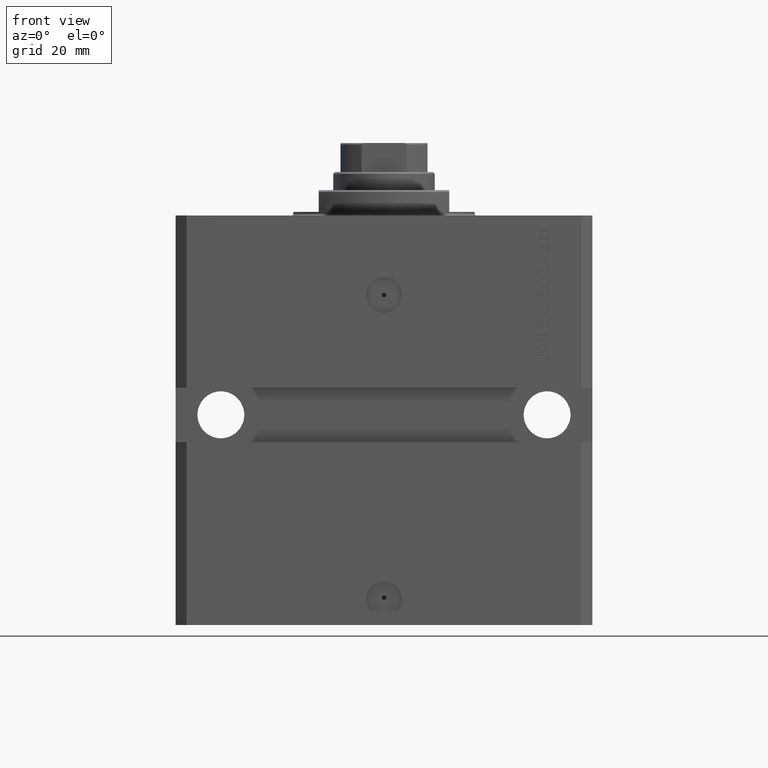
[diagram: clean part render]
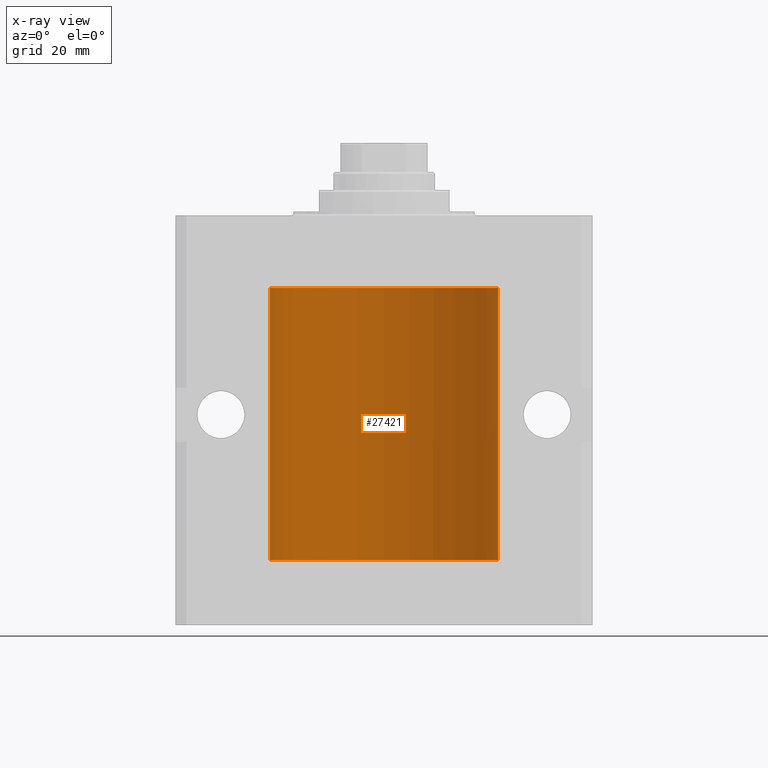
[diagram: x-ray — body ghosted, one internal face saturated and labeled with its STEP entity id]
A machine part, front view, then the same camera in x-ray: the body is ghosted and one INTERNAL B-rep face — a face not visible from any outside direction — is saturated and labeled: STEP entity #27421.
In plain terms, the highlighted cylindrical surface (partial cylindrical patch) has radius 31.5 mm, axis along (0, 0, 1).
Its self-contained STEP definition (entity closure, byte-faithful):
#44 = ORIENTED_EDGE ( 'NONE', *, *, #19110, .T. ) ;
#123 = CARTESIAN_POINT ( 'NONE',  ( 31.49379899281745665, 0.6250000000082825968, -91.99999999999904787 ) ) ;
#1339 = LINE ( 'NONE', #16516, #48705 ) ;
#1355 = CARTESIAN_POINT ( 'NONE',  ( 31.50000000000000000, 0.000000000000000000, -95.09999999999999432 ) ) ;
#1527 = CARTESIAN_POINT ( 'NONE',  ( 31.50000000000006395, 3.442404531757459093E-13, -28.37499999999677058 ) ) ;
#1794 = AXIS2_PLACEMENT_3D ( 'NONE', #44757, #33081, #45013 ) ;
#1925 = CARTESIAN_POINT ( 'NONE',  ( 31.50000000000000000, 0.08261130139622085977, -29.62500000000000000 ) ) ;
#1936 = AXIS2_PLACEMENT_3D ( 'NONE', #20533, #36210, #36460 ) ;
#2411 = DIRECTION ( 'NONE',  ( -0.000000000000000000, -0.000000000000000000, 1.000000000000000000 ) ) ;
#3114 = B_SPLINE_CURVE_WITH_KNOTS ( 'NONE', 3,
 ( #28298, #1925, #5175, #8911, #24063, #13393, #17107, #35773 ),
 .UNSPECIFIED., .F., .F.,
 ( 4, 2, 2, 4 ),
 ( 3.238208634416540241E-18, 0.0002443157997801682479, 0.0004886315995603332431, 0.0009772631991206560780 ),
 .UNSPECIFIED. ) ;
#3509 = CARTESIAN_POINT ( 'NONE',  ( 31.50000000000006395, 3.442404755096224483E-13, -91.37499999999675993 ) ) ;
#3699 = ORIENTED_EDGE ( 'NONE', *, *, #36966, .T. ) ;
#3852 = CARTESIAN_POINT ( 'NONE',  ( 31.49526225382467359, 0.5586305680866429091, -91.67476160622150871 ) ) ;
#3937 = CARTESIAN_POINT ( 'NONE',  ( -31.49851563474691929, 0.3150284575672400722, -91.45401791159622462 ) ) ;
#3982 = ORIENTED_EDGE ( 'NONE', *, *, #41477, .T. ) ;
#4284 = CARTESIAN_POINT ( 'NONE',  ( 31.50000000000000000, 0.000000000000000000, -20.00000000000000355 ) ) ;
#4780 = VERTEX_POINT ( 'NONE', #10645 ) ;
#5175 = CARTESIAN_POINT ( 'NONE',  ( 31.49966575203785268, 0.1636755595825553355, -29.60873030821187157 ) ) ;
#5542 = ORIENTED_EDGE ( 'NONE', *, *, #35063, .T. ) ;
#5621 = EDGE_CURVE ( 'NONE', #8554, #30212, #5635, .T. ) ;
#5635 = B_SPLINE_CURVE_WITH_KNOTS ( 'NONE', 3,
 ( #11644, #26794, #41976, #38242, #34505, #31018, #42209, #30784, #38742, #45961, #19583, #34764 ),
 .UNSPECIFIED., .F., .F.,
 ( 4, 2, 2, 2, 2, 4 ),
 ( 5.360009401240409372E-19, 0.0002442604562134703173, 0.0004885209124269400925, 0.0009770418248538795345, 0.001465562737280818977, 0.001954083649707758635 ),
 .UNSPECIFIED. ) ;
#6353 = ORIENTED_EDGE ( 'NONE', *, *, #45075, .F. ) ;
#6521 = CARTESIAN_POINT ( 'NONE',  ( 31.50000000000000000, 0.000000000000000000, -95.09999999999999432 ) ) ;
#6710 = EDGE_CURVE ( 'NONE', #45995, #42361, #17255, .T. ) ;
#6799 = CARTESIAN_POINT ( 'NONE',  ( 31.50000000000000000, 0.000000000000000000, -95.09999999999999432 ) ) ;
#8268 = CARTESIAN_POINT ( 'NONE',  ( 31.50000000000006395, 3.442404531757459093E-13, -28.37499999999677058 ) ) ;
#8309 = ORIENTED_EDGE ( 'NONE', *, *, #24601, .F. ) ;
#8498 = CARTESIAN_POINT ( 'NONE',  ( 31.49853627283156499, 0.3253078817183396310, -91.44140989403643971 ) ) ;
#8554 = VERTEX_POINT ( 'NONE', #24995 ) ;
#8685 = EDGE_CURVE ( 'NONE', #21688, #15198, #45101, .T. ) ;
#8717 = CARTESIAN_POINT ( 'NONE',  ( 31.49966575203785268, 0.1636755595825563903, -92.60873030821188934 ) ) ;
#8911 = CARTESIAN_POINT ( 'NONE',  ( 31.49851501686590893, 0.3150934959385778278, -29.54594721883858099 ) ) ;
#9154 = VERTEX_POINT ( 'NONE', #44964 ) ;
#9200 = ORIENTED_EDGE ( 'NONE', *, *, #12065, .F. ) ;
#10240 = B_SPLINE_CURVE_WITH_KNOTS ( 'NONE', 3,
 ( #42055, #16433, #8717, #45796, #34596, #34840, #34346, #46534 ),
 .UNSPECIFIED., .F., .F.,
 ( 4, 2, 2, 4 ),
 ( 2.422664849601941982E-18, 0.0002443157997801665674, 0.0004886315995603306411, 0.0009772631991206588969 ),
 .UNSPECIFIED. ) ;
#10645 = CARTESIAN_POINT ( 'NONE',  ( -31.50000000000006395, 3.480981129463732167E-13, -92.62500000000324007 ) ) ;
#10928 = CARTESIAN_POINT ( 'NONE',  ( -31.49770767031178664, 0.3843648832734369858, -91.50046081259654329 ) ) ;
#11644 = CARTESIAN_POINT ( 'NONE',  ( -31.50000000000000000, 6.759071642563815395E-15, -28.37500000000000355 ) ) ;
#12065 = EDGE_CURVE ( 'NONE', #28734, #4780, #33224, .T. ) ;
#13393 = CARTESIAN_POINT ( 'NONE',  ( 31.49527883250256721, 0.5574151849338075948, -29.32638608454754703 ) ) ;
#15198 = VERTEX_POINT ( 'NONE', #3509 ) ;
#15279 = CARTESIAN_POINT ( 'NONE',  ( 31.50000000000006395, 3.442404755096224483E-13, -91.37499999999675993 ) ) ;
#15652 = DIRECTION ( 'NONE',  ( 1.000000000000000000, 0.000000000000000000, 0.000000000000000000 ) ) ;
#15786 = CARTESIAN_POINT ( 'NONE',  ( 31.49379899281745665, 0.6250000000082756024, -28.99999999999905853 ) ) ;
#15872 = VERTEX_POINT ( 'NONE', #6521 ) ;
#16247 = VECTOR ( 'NONE', #23672, 1000.000000000000000 ) ;
#16433 = CARTESIAN_POINT ( 'NONE',  ( 31.50000000000000000, 0.08261130139621999935, -92.62499999999998579 ) ) ;
#16516 = CARTESIAN_POINT ( 'NONE',  ( -31.50000000000000000, 3.857637417314161900E-15, -95.09999999999999432 ) ) ;
#17107 = CARTESIAN_POINT ( 'NONE',  ( 31.49379899281760942, 0.6250000000003356204, -29.16310352862698707 ) ) ;
#17255 = LINE ( 'NONE', #1355, #40214 ) ;
#17298 = CYLINDRICAL_SURFACE ( 'NONE', #1936, 31.50000000000000000 ) ;
#19105 = CARTESIAN_POINT ( 'NONE',  ( -31.50000000000000000, 0.1631661150515251457, -92.62499999999987210 ) ) ;
#19110 = EDGE_CURVE ( 'NONE', #42361, #25488, #48609, .T. ) ;
#19251 = ORIENTED_EDGE ( 'NONE', *, *, #44982, .T. ) ;
#19583 = CARTESIAN_POINT ( 'NONE',  ( -31.50000000000000000, 0.1631661150515231473, -29.62499999999986144 ) ) ;
#19764 = EDGE_CURVE ( 'NONE', #9154, #45995, #28407, .T. ) ;
#20007 = CARTESIAN_POINT ( 'NONE',  ( -31.50000000000000000, -1.782211808847502510E-16, -91.37500000000001421 ) ) ;
#20533 = CARTESIAN_POINT ( 'NONE',  ( 0.000000000000000000, 0.000000000000000000, -95.09999999999999432 ) ) ;
#20655 = CARTESIAN_POINT ( 'NONE',  ( 31.49379899281762363, 0.6249999999996236344, -91.83697036533064306 ) ) ;
#21108 = ORIENTED_EDGE ( 'NONE', *, *, #6710, .T. ) ;
#21688 = VERTEX_POINT ( 'NONE', #123 ) ;
#21801 = VERTEX_POINT ( 'NONE', #20007 ) ;
#22339 = CARTESIAN_POINT ( 'NONE',  ( -31.49966591610108679, 0.1636376958180626451, -91.39126189995837990 ) ) ;
#22988 = CARTESIAN_POINT ( 'NONE',  ( 31.49853627283156499, 0.3253078817183361338, -28.44140989403645747 ) ) ;
#23672 = DIRECTION ( 'NONE',  ( -0.000000000000000000, -0.000000000000000000, 1.000000000000000000 ) ) ;
#23684 = EDGE_CURVE ( 'NONE', #15872, #28734, #48673, .T. ) ;
#24063 = CARTESIAN_POINT ( 'NONE',  ( 31.49770674525947101, 0.3844410175904603433, -29.49948347834465068 ) ) ;
#24249 = FACE_OUTER_BOUND ( 'NONE', #34969, .T. ) ;
#24295 = CARTESIAN_POINT ( 'NONE',  ( 31.50000000000000000, 0.000000000000000000, -95.09999999999999432 ) ) ;
#24601 = EDGE_CURVE ( 'NONE', #21801, #30212, #1339, .T. ) ;
#24632 = CARTESIAN_POINT ( 'NONE',  ( 31.50000000000000000, 0.1631291455194384676, -28.37500000000015277 ) ) ;
#24995 = CARTESIAN_POINT ( 'NONE',  ( -31.50000000000000000, 6.759071642563815395E-15, -28.37500000000000355 ) ) ;
#25488 = VERTEX_POINT ( 'NONE', #34548 ) ;
#26462 = CARTESIAN_POINT ( 'NONE',  ( 31.50000000000000000, 0.1631291455194407158, -91.37500000000017053 ) ) ;
#26794 = CARTESIAN_POINT ( 'NONE',  ( -31.49999999999999289, 0.08259258789479796692, -28.37500000000000711 ) ) ;
#27147 = AXIS2_PLACEMENT_3D ( 'NONE', #49230, #41773, #15652 ) ;
#27421 = ADVANCED_FACE ( 'NONE', ( #24249 ), #17298, .F. ) ;
#28298 = CARTESIAN_POINT ( 'NONE',  ( 31.50000000000000000, 1.559778271476245299E-15, -29.62500000000000000 ) ) ;
#28376 = CARTESIAN_POINT ( 'NONE',  ( 31.49379899281762363, 0.6249999999996150857, -28.83697036533062885 ) ) ;
#28407 = B_SPLINE_CURVE_WITH_KNOTS ( 'NONE', 3,
 ( #15786, #28376, #43552, #22988, #24632, #1527 ),
 .UNSPECIFIED., .F., .F.,
 ( 4, 2, 4 ),
 ( 0.0009772631991206560780, 0.001465673424414190877, 0.001954083649707725676 ),
 .UNSPECIFIED. ) ;
#28734 = VERTEX_POINT ( 'NONE', #43625 ) ;
#29645 = ORIENTED_EDGE ( 'NONE', *, *, #33433, .T. ) ;
#29943 = ORIENTED_EDGE ( 'NONE', *, *, #5621, .T. ) ;
#30212 = VERTEX_POINT ( 'NONE', #47985 ) ;
#30784 = CARTESIAN_POINT ( 'NONE',  ( -31.49379784581975983, 0.6250577973157598333, -29.16284184848847971 ) ) ;
#31018 = CARTESIAN_POINT ( 'NONE',  ( -31.49528028230855270, 0.5573323339569594692, -28.67349008819320844 ) ) ;
#31418 = ORIENTED_EDGE ( 'NONE', *, *, #23684, .F. ) ;
#33081 = DIRECTION ( 'NONE',  ( 0.000000000000000000, 0.000000000000000000, 1.000000000000000000 ) ) ;
#33224 = LINE ( 'NONE', #37458, #33891 ) ;
#33433 = EDGE_CURVE ( 'NONE', #44704, #21688, #10240, .T. ) ;
#33538 = CARTESIAN_POINT ( 'NONE',  ( -31.49379784581975272, 0.6250577973157663836, -92.16284184848845484 ) ) ;
#33796 = CARTESIAN_POINT ( 'NONE',  ( -31.50000000000006395, 3.480981129463732167E-13, -92.62500000000324007 ) ) ;
#33891 = VECTOR ( 'NONE', #48399, 1000.000000000000000 ) ;
#34346 = CARTESIAN_POINT ( 'NONE',  ( 31.49379899281760942, 0.6250000000003405054, -92.16310352862700483 ) ) ;
#34505 = CARTESIAN_POINT ( 'NONE',  ( -31.49770767031179730, 0.3843648832734374854, -28.50046081259655040 ) ) ;
#34528 = ORIENTED_EDGE ( 'NONE', *, *, #8685, .T. ) ;
#34548 = CARTESIAN_POINT ( 'NONE',  ( -31.50000000000000000, 3.857637417314161900E-15, -20.00000000000000355 ) ) ;
#34596 = CARTESIAN_POINT ( 'NONE',  ( 31.49770674525946390, 0.3844410175904657834, -92.49948347834465778 ) ) ;
#34764 = CARTESIAN_POINT ( 'NONE',  ( -31.50000000000006395, 3.480980906124966778E-13, -29.62500000000323297 ) ) ;
#34840 = CARTESIAN_POINT ( 'NONE',  ( 31.49527883250257432, 0.5574151849338155884, -92.32638608454757900 ) ) ;
#34969 = EDGE_LOOP ( 'NONE', ( #9200, #31418, #3699, #29645, #34528, #19251, #3982, #43654, #21108, #44, #6353, #29943, #8309, #5542 ) ) ;
#35063 = EDGE_CURVE ( 'NONE', #21801, #4780, #42733, .T. ) ;
#35424 = DIRECTION ( 'NONE',  ( -0.000000000000000000, -0.000000000000000000, 1.000000000000000000 ) ) ;
#35773 = CARTESIAN_POINT ( 'NONE',  ( 31.49379899281745665, 0.6250000000082756024, -28.99999999999905853 ) ) ;
#35994 = LINE ( 'NONE', #24295, #41856 ) ;
#36210 = DIRECTION ( 'NONE',  ( -0.000000000000000000, -0.000000000000000000, 1.000000000000000000 ) ) ;
#36460 = DIRECTION ( 'NONE',  ( 1.000000000000000000, 0.000000000000000000, 0.000000000000000000 ) ) ;
#36966 = EDGE_CURVE ( 'NONE', #15872, #44704, #35994, .T. ) ;
#37299 = CARTESIAN_POINT ( 'NONE',  ( -31.49380014137585704, 0.6249421240571511049, -91.83671479190290654 ) ) ;
#37458 = CARTESIAN_POINT ( 'NONE',  ( -31.50000000000000000, 3.857637417314161900E-15, -95.09999999999999432 ) ) ;
#37533 = CARTESIAN_POINT ( 'NONE',  ( -31.49528028230854559, 0.5573323339569600243, -91.67349008819321909 ) ) ;
#37714 = VECTOR ( 'NONE', #49077, 1000.000000000000000 ) ;
#38028 = CARTESIAN_POINT ( 'NONE',  ( -31.49526081842315151, 0.5587119163470746219, -92.32511513093052713 ) ) ;
#38242 = CARTESIAN_POINT ( 'NONE',  ( -31.49851563474691218, 0.3150284575672402942, -28.45401791159624239 ) ) ;
#38742 = CARTESIAN_POINT ( 'NONE',  ( -31.49526081842315151, 0.5587119163470772865, -29.32511513093050937 ) ) ;
#40214 = VECTOR ( 'NONE', #35424, 1000.000000000000000 ) ;
#41477 = EDGE_CURVE ( 'NONE', #42913, #9154, #3114, .T. ) ;
#41773 = DIRECTION ( 'NONE',  ( 0.000000000000000000, 0.000000000000000000, 1.000000000000000000 ) ) ;
#41856 = VECTOR ( 'NONE', #2411, 1000.000000000000000 ) ;
#41976 = CARTESIAN_POINT ( 'NONE',  ( -31.49966591610109390, 0.1636376958180632002, -28.39126189995839411 ) ) ;
#42055 = CARTESIAN_POINT ( 'NONE',  ( 31.50000000000000000, -2.492939093807799249E-15, -92.62500000000000000 ) ) ;
#42090 = CARTESIAN_POINT ( 'NONE',  ( -31.50000000000000000, 3.857637417314161900E-15, -95.09999999999999432 ) ) ;
#42209 = CARTESIAN_POINT ( 'NONE',  ( -31.49380014137585704, 0.6249421240571523262, -28.83671479190291365 ) ) ;
#42361 = VERTEX_POINT ( 'NONE', #4284 ) ;
#42733 = B_SPLINE_CURVE_WITH_KNOTS ( 'NONE', 3,
 ( #45471, #48968, #22339, #3937, #10928, #37533, #37299, #33538, #38028, #45231, #19105, #33796 ),
 .UNSPECIFIED., .F., .F.,
 ( 4, 2, 2, 2, 2, 4 ),
 ( 3.071878898249769581E-18, 0.0002442604562134846288, 0.0004885209124269661134, 0.0009770418248538992670, 0.001465562737280832421, 0.001954083649707765141 ),
 .UNSPECIFIED. ) ;
#42913 = VERTEX_POINT ( 'NONE', #47497 ) ;
#43295 = CARTESIAN_POINT ( 'NONE',  ( 31.49379899281745665, 0.6250000000082825968, -91.99999999999904787 ) ) ;
#43552 = CARTESIAN_POINT ( 'NONE',  ( 31.49526225382467359, 0.5586305680866376910, -28.67476160622149806 ) ) ;
#43625 = CARTESIAN_POINT ( 'NONE',  ( -31.50000000000000000, 3.857637417314161900E-15, -95.09999999999999432 ) ) ;
#43654 = ORIENTED_EDGE ( 'NONE', *, *, #19764, .T. ) ;
#44704 = VERTEX_POINT ( 'NONE', #46380 ) ;
#44757 = CARTESIAN_POINT ( 'NONE',  ( 0.000000000000000000, 0.000000000000000000, -95.09999999999999432 ) ) ;
#44964 = CARTESIAN_POINT ( 'NONE',  ( 31.49379899281745665, 0.6250000000082756024, -28.99999999999905853 ) ) ;
#44982 = EDGE_CURVE ( 'NONE', #15198, #42913, #45102, .T. ) ;
#45013 = DIRECTION ( 'NONE',  ( 1.000000000000000000, 0.000000000000000000, 0.000000000000000000 ) ) ;
#45075 = EDGE_CURVE ( 'NONE', #8554, #25488, #46318, .T. ) ;
#45101 = B_SPLINE_CURVE_WITH_KNOTS ( 'NONE', 3,
 ( #43295, #20655, #3852, #8498, #26462, #15279 ),
 .UNSPECIFIED., .F., .F.,
 ( 4, 2, 4 ),
 ( 0.0009772631991206588969, 0.001465673424414194563, 0.001954083649707730446 ),
 .UNSPECIFIED. ) ;
#45102 = LINE ( 'NONE', #6799, #37714 ) ;
#45231 = CARTESIAN_POINT ( 'NONE',  ( -31.49853548231894251, 0.3253851488062153852, -92.55855470525683870 ) ) ;
#45471 = CARTESIAN_POINT ( 'NONE',  ( -31.50000000000000000, -1.782211808847502510E-16, -91.37500000000001421 ) ) ;
#45796 = CARTESIAN_POINT ( 'NONE',  ( 31.49851501686590893, 0.3150934959385818801, -92.54594721883857744 ) ) ;
#45961 = CARTESIAN_POINT ( 'NONE',  ( -31.49853548231893541, 0.3253851488062241559, -29.55855470525682094 ) ) ;
#45995 = VERTEX_POINT ( 'NONE', #8268 ) ;
#46318 = LINE ( 'NONE', #42090, #16247 ) ;
#46380 = CARTESIAN_POINT ( 'NONE',  ( 31.50000000000000000, -2.492939093807799249E-15, -92.62500000000000000 ) ) ;
#46534 = CARTESIAN_POINT ( 'NONE',  ( 31.49379899281745665, 0.6250000000082825968, -91.99999999999904787 ) ) ;
#47346 = DIRECTION ( 'NONE',  ( -0.000000000000000000, -0.000000000000000000, 1.000000000000000000 ) ) ;
#47497 = CARTESIAN_POINT ( 'NONE',  ( 31.50000000000000000, 1.559778271476245299E-15, -29.62500000000000000 ) ) ;
#47985 = CARTESIAN_POINT ( 'NONE',  ( -31.50000000000006395, 3.480980906124966778E-13, -29.62500000000323297 ) ) ;
#48399 = DIRECTION ( 'NONE',  ( -0.000000000000000000, -0.000000000000000000, 1.000000000000000000 ) ) ;
#48609 = CIRCLE ( 'NONE', #27147, 31.50000000000000000 ) ;
#48673 = CIRCLE ( 'NONE', #1794, 31.50000000000000000 ) ;
#48705 = VECTOR ( 'NONE', #47346, 1000.000000000000000 ) ;
#48968 = CARTESIAN_POINT ( 'NONE',  ( -31.49999999999999289, 0.08259258789479377583, -91.37500000000002842 ) ) ;
#49077 = DIRECTION ( 'NONE',  ( -0.000000000000000000, -0.000000000000000000, 1.000000000000000000 ) ) ;
#49230 = CARTESIAN_POINT ( 'NONE',  ( 0.000000000000000000, 0.000000000000000000, -20.00000000000000355 ) ) ;